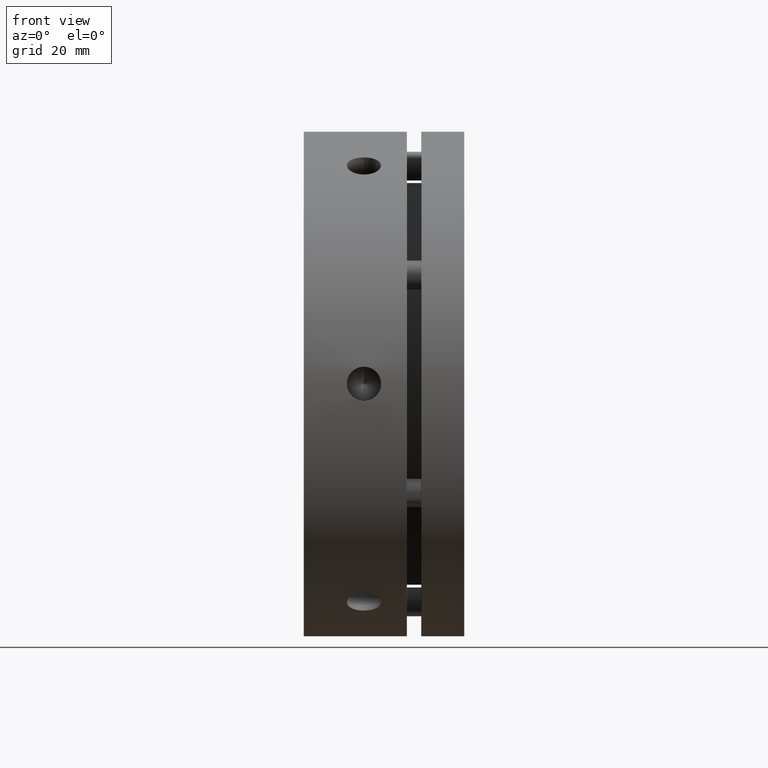
[diagram: clean part render]
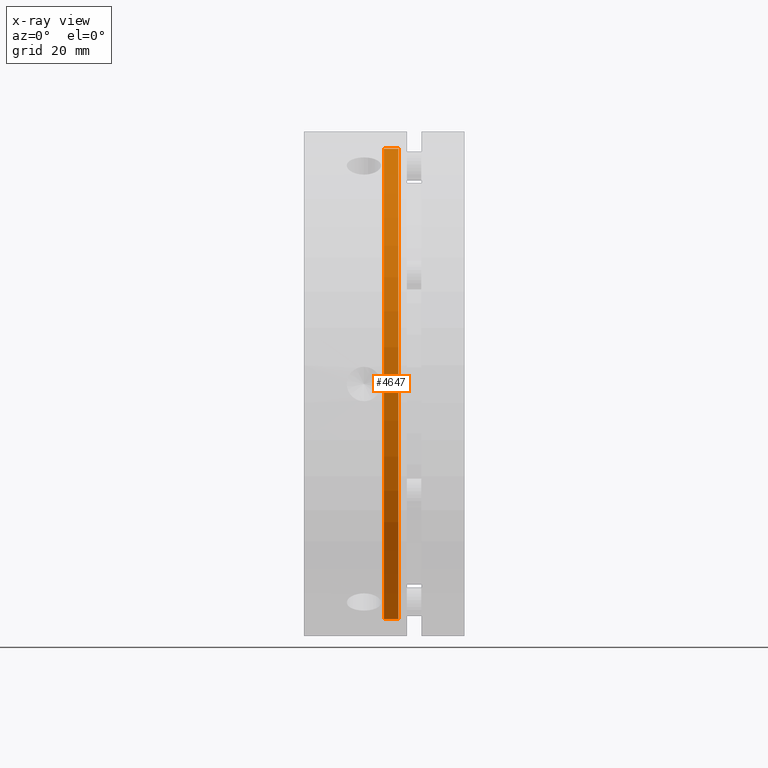
[diagram: x-ray — body ghosted, one internal face saturated and labeled with its STEP entity id]
A machine part, front view, then the same camera in x-ray: the body is ghosted and one INTERNAL B-rep face — a face not visible from any outside direction — is saturated and labeled: STEP entity #4647.
In plain terms, the highlighted cylindrical surface (partial cylindrical patch) has radius 41 mm, axis along (-1, 0, 0).
Its self-contained STEP definition (entity closure, byte-faithful):
#599 = CARTESIAN_POINT ( 'NONE',  ( 15.25000000000000200, 5.021051876504149000E-015, -41.00000000000000700 ) ) ;
#602 = CARTESIAN_POINT ( 'NONE',  ( 15.25000000000000200, 0.0000000000000000000, 41.00000000000000700 ) ) ;
#603 = DIRECTION ( 'NONE',  ( -1.000000000000000000, 0.0000000000000000000, 0.0000000000000000000 ) ) ;
#604 = DIRECTION ( 'NONE',  ( -1.000000000000000000, 0.0000000000000000000, 0.0000000000000000000 ) ) ;
#605 = CARTESIAN_POINT ( 'NONE',  ( 16.50000000000000000, 0.0000000000000000000, 0.0000000000000000000 ) ) ;
#606 = DIRECTION ( 'NONE',  ( 1.000000000000000000, -0.0000000000000000000, -0.0000000000000000000 ) ) ;
#607 = DIRECTION ( 'NONE',  ( 0.0000000000000000000, 0.0000000000000000000, 1.000000000000000000 ) ) ;
#612 = CARTESIAN_POINT ( 'NONE',  ( 14.00000000000000400, 0.0000000000000000000, 0.0000000000000000000 ) ) ;
#613 = DIRECTION ( 'NONE',  ( -1.000000000000000000, 0.0000000000000000000, 0.0000000000000000000 ) ) ;
#614 = DIRECTION ( 'NONE',  ( 0.0000000000000000000, 0.0000000000000000000, 1.000000000000000000 ) ) ;
#1408 = LINE ( 'NONE', #599, #1415 ) ;
#1410 = LINE ( 'NONE', #602, #1413 ) ;
#1412 = CIRCLE ( 'NONE', #3241, 41.00000000000000700 ) ;
#1413 = VECTOR ( 'NONE', #603, 1000.000000000000000 ) ;
#1414 = CIRCLE ( 'NONE', #3243, 41.00000000000000700 ) ;
#1415 = VECTOR ( 'NONE', #604, 1000.000000000000000 ) ;
#1735 = FACE_OUTER_BOUND ( 'NONE', #3522, .T. ) ;
#1747 = CYLINDRICAL_SURFACE ( 'NONE', #3376, 41.00000000000000700 ) ;
#1889 = CARTESIAN_POINT ( 'NONE',  ( 14.00000000000000400, 0.0000000000000000000, 41.00000000000000700 ) ) ;
#1890 = CARTESIAN_POINT ( 'NONE',  ( 14.00000000000000400, 5.021051876504149000E-015, -41.00000000000000700 ) ) ;
#1895 = CARTESIAN_POINT ( 'NONE',  ( 16.50000000000000000, 5.021051876504149000E-015, -41.00000000000000700 ) ) ;
#1896 = CARTESIAN_POINT ( 'NONE',  ( 16.50000000000000000, 0.0000000000000000000, 41.00000000000000700 ) ) ;
#2112 = DIRECTION ( 'NONE',  ( 0.0000000000000000000, 0.0000000000000000000, 1.000000000000000000 ) ) ;
#2114 = DIRECTION ( 'NONE',  ( -1.000000000000000000, 0.0000000000000000000, 0.0000000000000000000 ) ) ;
#2116 = CARTESIAN_POINT ( 'NONE',  ( 15.25000000000000200, 0.0000000000000000000, 0.0000000000000000000 ) ) ;
#3196 = EDGE_CURVE ( 'NONE', #4556, #4549, #1410, .T. ) ;
#3197 = EDGE_CURVE ( 'NONE', #4555, #4550, #1408, .T. ) ;
#3198 = EDGE_CURVE ( 'NONE', #4556, #4555, #1412, .T. ) ;
#3200 = EDGE_CURVE ( 'NONE', #4550, #4549, #1414, .T. ) ;
#3241 = AXIS2_PLACEMENT_3D ( 'NONE', #605, #606, #607 ) ;
#3243 = AXIS2_PLACEMENT_3D ( 'NONE', #612, #613, #614 ) ;
#3376 = AXIS2_PLACEMENT_3D ( 'NONE', #2116, #2114, #2112 ) ;
#3522 = EDGE_LOOP ( 'NONE', ( #3826, #3827, #3828, #3829 ) ) ;
#3826 = ORIENTED_EDGE ( 'NONE', *, *, #3198, .T. ) ;
#3827 = ORIENTED_EDGE ( 'NONE', *, *, #3197, .T. ) ;
#3828 = ORIENTED_EDGE ( 'NONE', *, *, #3200, .T. ) ;
#3829 = ORIENTED_EDGE ( 'NONE', *, *, #3196, .F. ) ;
#4549 = VERTEX_POINT ( 'NONE', #1889 ) ;
#4550 = VERTEX_POINT ( 'NONE', #1890 ) ;
#4555 = VERTEX_POINT ( 'NONE', #1895 ) ;
#4556 = VERTEX_POINT ( 'NONE', #1896 ) ;
#4647 = ADVANCED_FACE ( 'NONE', ( #1735 ), #1747, .F. ) ;